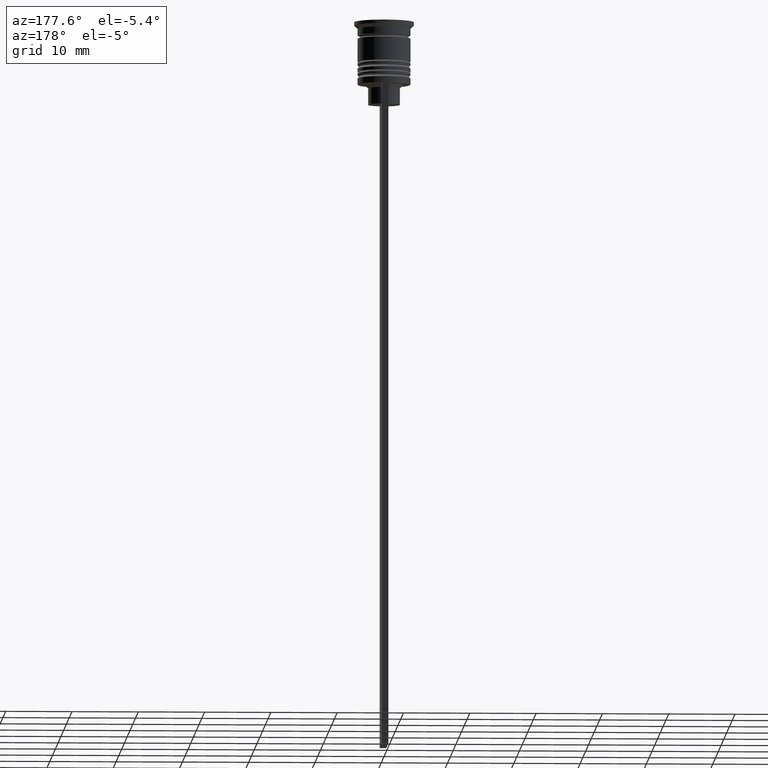
[diagram: clean part render]
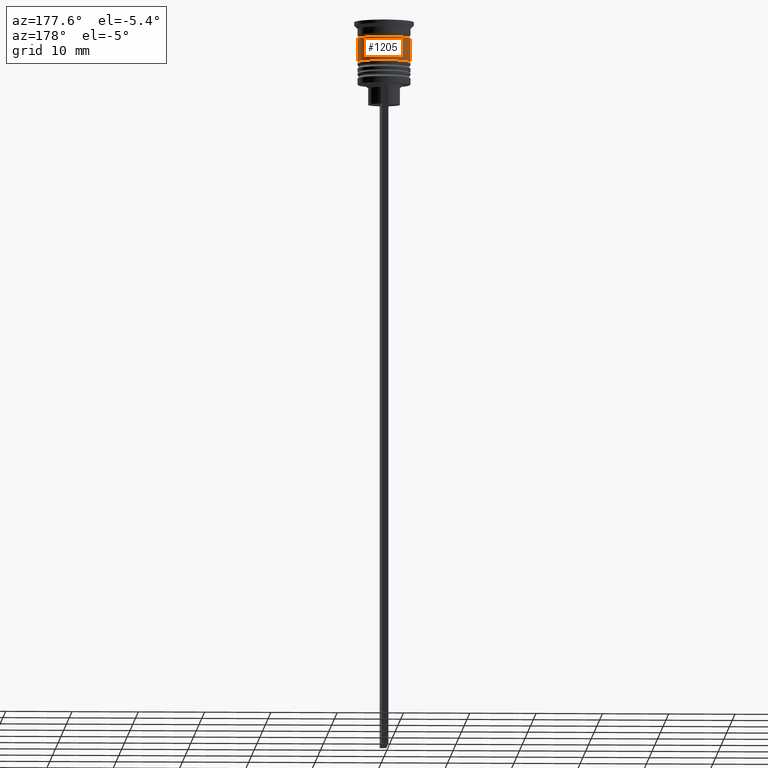
[diagram: same view with one face highlighted and labeled with its STEP entity id]
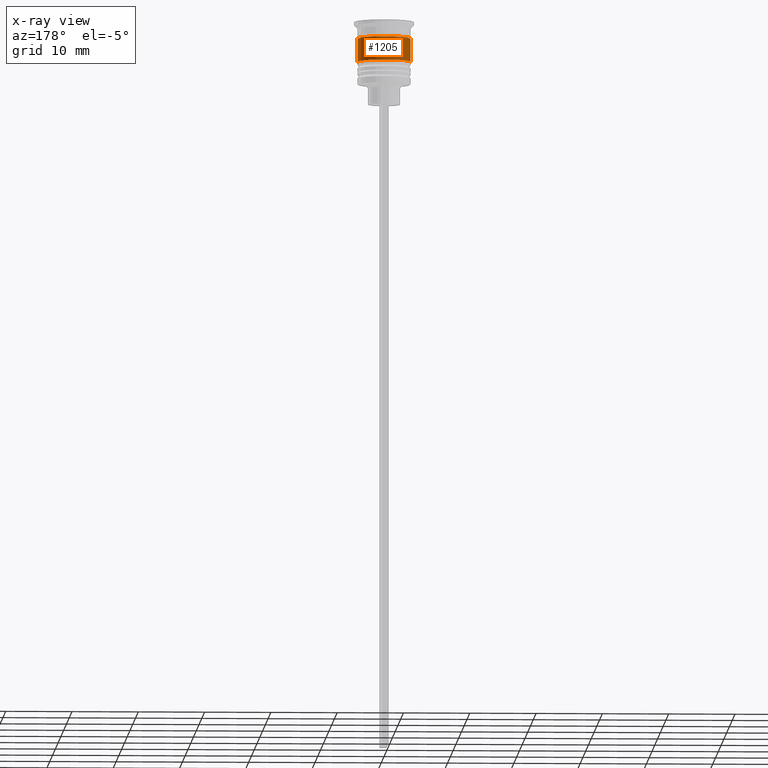
[diagram: x-ray of the same camera — body ghosted, the highlighted face saturated]
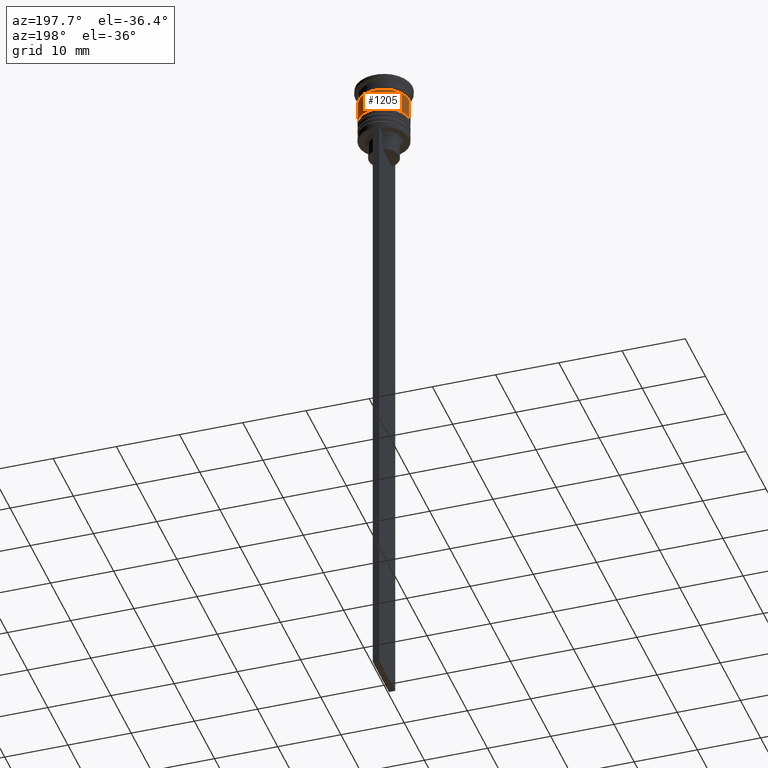
[diagram: same view with one face highlighted and labeled with its STEP entity id]
A machine part, auxiliary view. The second image highlights one B-rep face of the part: STEP entity #1205.
The next image is the same camera in x-ray: the body ghosted, the highlighted face saturated — about 0% of this face is hidden behind the body in this view.
A second angle (auxiliary view) of the same face is appended — the face is thin or edge-on in the first view.
In plain terms, the highlighted cylindrical surface (edge-blend (fillet) strip) has radius 4 mm, axis along (-0, -0, 1).
Its self-contained STEP definition (entity closure, byte-faithful):
#17 = DIRECTION ( 'NONE',  ( 1.000000000000000000, 0.000000000000000000, 0.000000000000000000 ) ) ;
#90 = AXIS2_PLACEMENT_3D ( 'NONE', #2019, #844, #17 ) ;
#96 = CARTESIAN_POINT ( 'NONE',  ( 4.000000000000000000, 0.000000000000000000, -2.500000000000000000 ) ) ;
#211 = AXIS2_PLACEMENT_3D ( 'NONE', #1035, #1801, #2405 ) ;
#232 = LINE ( 'NONE', #1007, #1112 ) ;
#238 = DIRECTION ( 'NONE',  ( -0.000000000000000000, -0.000000000000000000, 1.000000000000000000 ) ) ;
#240 = DIRECTION ( 'NONE',  ( -0.000000000000000000, -0.000000000000000000, 1.000000000000000000 ) ) ;
#287 = VERTEX_POINT ( 'NONE', #881 ) ;
#493 = CARTESIAN_POINT ( 'NONE',  ( -4.000000000000000000, 4.898587196589412829E-16, -2.500000000000000000 ) ) ;
#557 = ORIENTED_EDGE ( 'NONE', *, *, #774, .T. ) ;
#584 = FACE_OUTER_BOUND ( 'NONE', #1345, .T. ) ;
#774 = EDGE_CURVE ( 'NONE', #1768, #929, #232, .T. ) ;
#844 = DIRECTION ( 'NONE',  ( -0.000000000000000000, -0.000000000000000000, 1.000000000000000000 ) ) ;
#856 = AXIS2_PLACEMENT_3D ( 'NONE', #2020, #240, #1981 ) ;
#881 = CARTESIAN_POINT ( 'NONE',  ( 4.000000000000000888, 0.000000000000000000, -6.000000000000000000 ) ) ;
#929 = VERTEX_POINT ( 'NONE', #493 ) ;
#1007 = CARTESIAN_POINT ( 'NONE',  ( -4.000000000000000000, 4.898587196589412829E-16, 0.000000000000000000 ) ) ;
#1035 = CARTESIAN_POINT ( 'NONE',  ( 0.000000000000000000, 0.000000000000000000, -6.000000000000000000 ) ) ;
#1050 = DIRECTION ( 'NONE',  ( -0.000000000000000000, -0.000000000000000000, 1.000000000000000000 ) ) ;
#1112 = VECTOR ( 'NONE', #238, 1000.000000000000000 ) ;
#1205 = ADVANCED_FACE ( 'NONE', ( #584 ), #1775, .T. ) ;
#1345 = EDGE_LOOP ( 'NONE', ( #2239, #557, #2288, #1351 ) ) ;
#1351 = ORIENTED_EDGE ( 'NONE', *, *, #2050, .F. ) ;
#1419 = LINE ( 'NONE', #2240, #2173 ) ;
#1448 = VERTEX_POINT ( 'NONE', #96 ) ;
#1756 = CIRCLE ( 'NONE', #856, 4.000000000000000000 ) ;
#1768 = VERTEX_POINT ( 'NONE', #1834 ) ;
#1775 = CYLINDRICAL_SURFACE ( 'NONE', #90, 4.000000000000000000 ) ;
#1801 = DIRECTION ( 'NONE',  ( -0.000000000000000000, -0.000000000000000000, 1.000000000000000000 ) ) ;
#1834 = CARTESIAN_POINT ( 'NONE',  ( -4.000000000000000888, 4.898587196589413815E-16, -6.000000000000000000 ) ) ;
#1981 = DIRECTION ( 'NONE',  ( 1.000000000000000000, 0.000000000000000000, 0.000000000000000000 ) ) ;
#2019 = CARTESIAN_POINT ( 'NONE',  ( 0.000000000000000000, 0.000000000000000000, 0.000000000000000000 ) ) ;
#2020 = CARTESIAN_POINT ( 'NONE',  ( 0.000000000000000000, 0.000000000000000000, -2.500000000000000000 ) ) ;
#2050 = EDGE_CURVE ( 'NONE', #287, #1448, #1419, .T. ) ;
#2173 = VECTOR ( 'NONE', #1050, 1000.000000000000000 ) ;
#2239 = ORIENTED_EDGE ( 'NONE', *, *, #2534, .T. ) ;
#2240 = CARTESIAN_POINT ( 'NONE',  ( 4.000000000000000000, 0.000000000000000000, 0.000000000000000000 ) ) ;
#2288 = ORIENTED_EDGE ( 'NONE', *, *, #2522, .F. ) ;
#2405 = DIRECTION ( 'NONE',  ( 1.000000000000000000, 0.000000000000000000, 0.000000000000000000 ) ) ;
#2406 = CIRCLE ( 'NONE', #211, 4.000000000000000888 ) ;
#2522 = EDGE_CURVE ( 'NONE', #1448, #929, #1756, .T. ) ;
#2534 = EDGE_CURVE ( 'NONE', #287, #1768, #2406, .T. ) ;